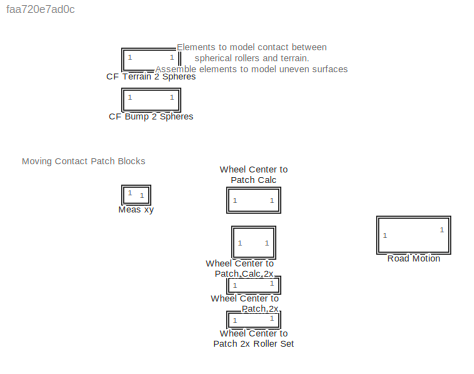
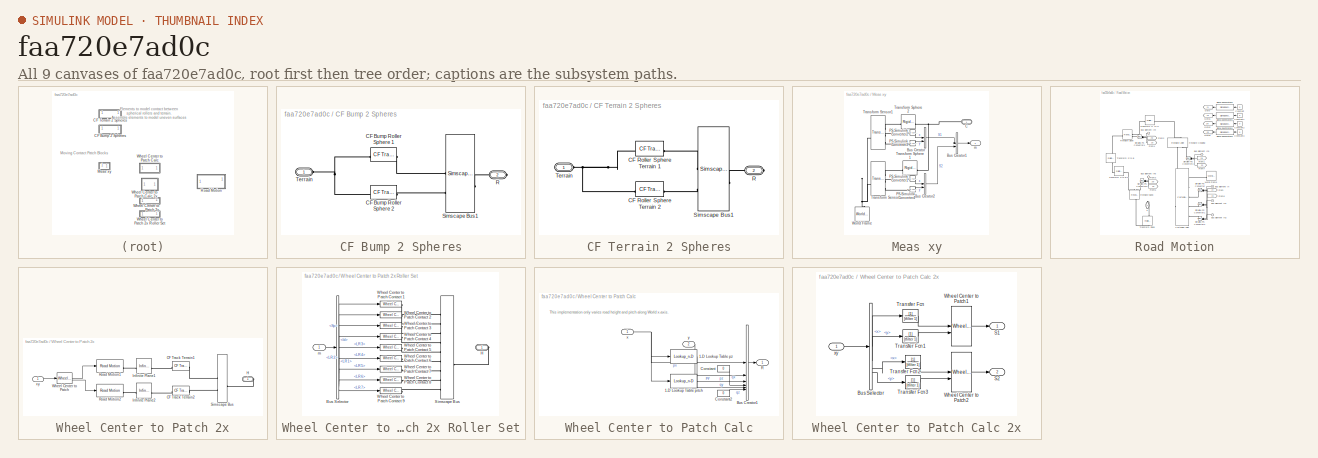
[diagram: thumbnail index - all 9 canvases of the model, root first then tree order]
MODEL slx_faa720e7ad0c
KIND library
CONFIG SolverName = VariableStepAuto
BLOCK [SubSystem] CF Bump 2 Spheres
BLOCK [Reference] CF Bump 2 Spheres/CF Bump Roller Sphere 1   REF=sm_trackV_lib_terrain_contact_elem/CF Track Terrain
  SourceBlock = sm_trackV_lib_terrain_contact_elem/CF Track Terrain
  SourceType = Contact Force, Track Segment to Terrain
BLOCK [Reference] CF Bump 2 Spheres/CF Bump Roller Sphere 2  REF=sm_trackV_lib_terrain_contact_elem/CF Track Terrain
  SourceBlock = sm_trackV_lib_terrain_contact_elem/CF Track Terrain
  SourceType = Contact Force, Track Segment to Terrain
BLOCK [PMIOPort] CF Bump 2 Spheres/R
  Port = 2
  Side = Right
BLOCK [SimscapeBus] CF Bump 2 Spheres/Simscape Bus1
  HierarchyStrings = S1;S2
BLOCK [PMIOPort] CF Bump 2 Spheres/Terrain
  Side = Left
BLOCK [SubSystem] CF Terrain 2 Spheres
BLOCK [Reference] CF Terrain 2 Spheres/CF Roller Sphere Terrain 1  REF=sm_trackV_lib_terrain_contact_elem/CF Track Terrain
  NameLocation = top
  SourceBlock = sm_trackV_lib_terrain_contact_elem/CF Track Terrain
  SourceType = Contact Force, Track Segment to Terrain
BLOCK [Reference] CF Terrain 2 Spheres/CF Roller Sphere Terrain 2  REF=sm_trackV_lib_terrain_contact_elem/CF Track Terrain
  SourceBlock = sm_trackV_lib_terrain_contact_elem/CF Track Terrain
  SourceType = Contact Force, Track Segment to Terrain
BLOCK [PMIOPort] CF Terrain 2 Spheres/R
  Port = 2
  Side = Right
BLOCK [SimscapeBus] CF Terrain 2 Spheres/Simscape Bus1
  HierarchyStrings = S1;S2
BLOCK [PMIOPort] CF Terrain 2 Spheres/Terrain
  Side = Left
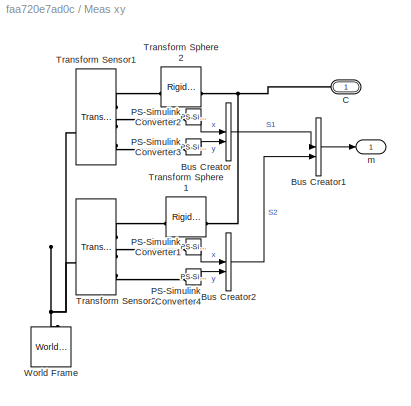
BLOCK [SubSystem] Meas xy
BLOCK [BusCreator] Meas xy/Bus Creator
  DisplayOption = bar
  InheritFromInputs = on
  Inputs = 2
BLOCK [BusCreator] Meas xy/Bus Creator1
  DisplayOption = bar
  InheritFromInputs = on
  Inputs = 2
BLOCK [BusCreator] Meas xy/Bus Creator2
  DisplayOption = bar
  InheritFromInputs = on
  Inputs = 2
BLOCK [PMIOPort] Meas xy/C
  Side = Left
BLOCK [Reference] Meas xy/PS-Simulink Converter1  REF=nesl_utility/PS-Simulink
Converter
  SourceBlock = nesl_utility/PS-Simulink\nConverter
  SourceType = PS-Simulink\nConverter
BLOCK [Reference] Meas xy/PS-Simulink Converter2  REF=nesl_utility/PS-Simulink
Converter
  SourceBlock = nesl_utility/PS-Simulink\nConverter
  SourceType = PS-Simulink\nConverter
BLOCK [Reference] Meas xy/PS-Simulink Converter3  REF=nesl_utility/PS-Simulink
Converter
  SourceBlock = nesl_utility/PS-Simulink\nConverter
  SourceType = PS-Simulink\nConverter
BLOCK [Reference] Meas xy/PS-Simulink Converter4  REF=nesl_utility/PS-Simulink
Converter
  SourceBlock = nesl_utility/PS-Simulink\nConverter
  SourceType = PS-Simulink\nConverter
BLOCK [Reference] Meas xy/Transform Sensor1  REF=sm_lib/Frames and
Transforms/Transform
Sensor
  SourceBlock = sm_lib/Frames and\nTransforms/Transform\nSensor
  SourceType = Transform\nSensor
BLOCK [Reference] Meas xy/Transform Sensor2  REF=sm_lib/Frames and
Transforms/Transform
Sensor
  SourceBlock = sm_lib/Frames and\nTransforms/Transform\nSensor
  SourceType = Transform\nSensor
BLOCK [Reference] Meas xy/Transform Sphere 1  REF=sm_lib/Frames and
Transforms/Rigid
Transform
  NameLocation = top
  SourceBlock = sm_lib/Frames and\nTransforms/Rigid\nTransform
  SourceType = Rigid\nTransform
BLOCK [Reference] Meas xy/Transform Sphere 2  REF=sm_lib/Frames and
Transforms/Rigid
Transform
  NameLocation = top
  SourceBlock = sm_lib/Frames and\nTransforms/Rigid\nTransform
  SourceType = Rigid\nTransform
BLOCK [Reference] Meas xy/World Frame  REF=sm_lib/Frames and
Transforms/World Frame
  NameLocation = left
  SourceBlock = sm_lib/Frames and\nTransforms/World Frame
  SourceType = World Frame
BLOCK [Outport] Meas xy/m
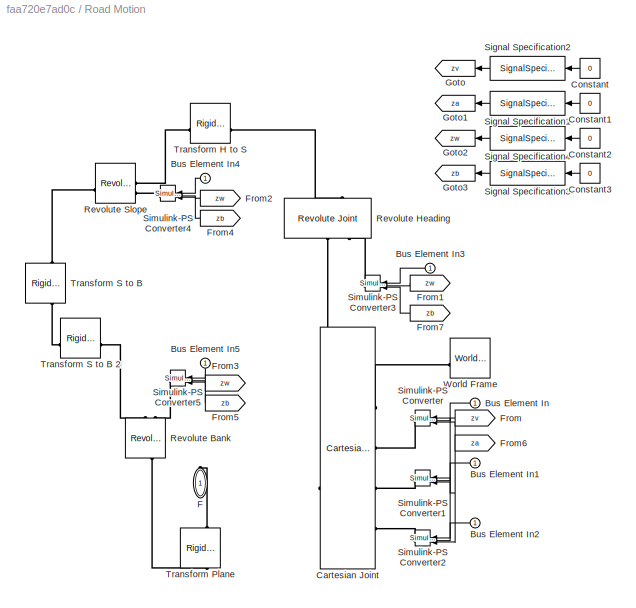
BLOCK [SubSystem] Road Motion
BLOCK [Inport] Road Motion/Bus Element In
BLOCK [Inport] Road Motion/Bus Element In1
BLOCK [Inport] Road Motion/Bus Element In2
BLOCK [Inport] Road Motion/Bus Element In3
BLOCK [Inport] Road Motion/Bus Element In4
BLOCK [Inport] Road Motion/Bus Element In5
BLOCK [Reference] Road Motion/Cartesian Joint  REF=sm_lib/Joints/Cartesian
Joint
  SourceBlock = sm_lib/Joints/Cartesian\nJoint
  SourceType = Cartesian\nJoint
BLOCK [Constant] Road Motion/Constant
  Value = 0
BLOCK [Constant] Road Motion/Constant1
  Value = 0
BLOCK [Constant] Road Motion/Constant2
  Value = 0
BLOCK [Constant] Road Motion/Constant3
  Value = 0
BLOCK [PMIOPort] Road Motion/F
  NameLocation = right
  Side = Right
BLOCK [From] Road Motion/From
  GotoTag = zv
BLOCK [From] Road Motion/From1
  GotoTag = zw
BLOCK [From] Road Motion/From2
  GotoTag = zw
BLOCK [From] Road Motion/From3
  GotoTag = zw
BLOCK [From] Road Motion/From4
  GotoTag = zb
BLOCK [From] Road Motion/From5
  GotoTag = zb
BLOCK [From] Road Motion/From6
  GotoTag = za
BLOCK [From] Road Motion/From7
  GotoTag = zb
BLOCK [Goto] Road Motion/Goto
  GotoTag = zv
  NameLocation = top
BLOCK [Goto] Road Motion/Goto1
  GotoTag = za
  NameLocation = top
BLOCK [Goto] Road Motion/Goto2
  GotoTag = zw
  NameLocation = top
BLOCK [Goto] Road Motion/Goto3
  GotoTag = zb
  NameLocation = top
BLOCK [Reference] Road Motion/Revolute Bank  REF=sm_lib/Joints/Revolute Joint
  NameLocation = left
  SourceBlock = sm_lib/Joints/Revolute Joint
  SourceType = Revolute Joint
BLOCK [Reference] Road Motion/Revolute Heading  REF=sm_lib/Joints/Revolute Joint
  NameLocation = right
  SourceBlock = sm_lib/Joints/Revolute Joint
  SourceType = Revolute Joint
BLOCK [Reference] Road Motion/Revolute Slope  REF=sm_lib/Joints/Revolute Joint
  SourceBlock = sm_lib/Joints/Revolute Joint
  SourceType = Revolute Joint
BLOCK [SignalSpecification] Road Motion/Signal Specification1
  Unit = m/s^2
BLOCK [SignalSpecification] Road Motion/Signal Specification2
  Unit = m/s
BLOCK [SignalSpecification] Road Motion/Signal Specification3
  Unit = rad/s^2
BLOCK [SignalSpecification] Road Motion/Signal Specification4
  Unit = rad/s
BLOCK [Reference] Road Motion/Simulink-PS Converter  REF=nesl_utility/Simulink-PS
Converter
  SourceBlock = nesl_utility/Simulink-PS\nConverter
  SourceType = Simulink-PS\nConverter
BLOCK [Reference] Road Motion/Simulink-PS Converter1  REF=nesl_utility/Simulink-PS
Converter
  SourceBlock = nesl_utility/Simulink-PS\nConverter
  SourceType = Simulink-PS\nConverter
BLOCK [Reference] Road Motion/Simulink-PS Converter2  REF=nesl_utility/Simulink-PS
Converter
  SourceBlock = nesl_utility/Simulink-PS\nConverter
  SourceType = Simulink-PS\nConverter
BLOCK [Reference] Road Motion/Simulink-PS Converter3  REF=nesl_utility/Simulink-PS
Converter
  NameLocation = top
  SourceBlock = nesl_utility/Simulink-PS\nConverter
  SourceType = Simulink-PS\nConverter
BLOCK [Reference] Road Motion/Simulink-PS Converter4  REF=nesl_utility/Simulink-PS
Converter
  SourceBlock = nesl_utility/Simulink-PS\nConverter
  SourceType = Simulink-PS\nConverter
BLOCK [Reference] Road Motion/Simulink-PS Converter5  REF=nesl_utility/Simulink-PS
Converter
  SourceBlock = nesl_utility/Simulink-PS\nConverter
  SourceType = Simulink-PS\nConverter
BLOCK [Reference] Road Motion/Transform H to S  REF=sm_lib/Frames and
Transforms/Rigid
Transform
  NameLocation = top
  SourceBlock = sm_lib/Frames and\nTransforms/Rigid\nTransform
  SourceType = Rigid\nTransform
BLOCK [Reference] Road Motion/Transform Plane  REF=sm_lib/Frames and
Transforms/Rigid
Transform
  NameLocation = right
  SourceBlock = sm_lib/Frames and\nTransforms/Rigid\nTransform
  SourceType = Rigid\nTransform
BLOCK [Reference] Road Motion/Transform S to B  REF=sm_lib/Frames and
Transforms/Rigid
Transform
  NameLocation = right
  SourceBlock = sm_lib/Frames and\nTransforms/Rigid\nTransform
  SourceType = Rigid\nTransform
BLOCK [Reference] Road Motion/Transform S to B 2  REF=sm_lib/Frames and
Transforms/Rigid
Transform
  SourceBlock = sm_lib/Frames and\nTransforms/Rigid\nTransform
  SourceType = Rigid\nTransform
BLOCK [Reference] Road Motion/World Frame  REF=sm_lib/Frames and
Transforms/World Frame
  NameLocation = top
  SourceBlock = sm_lib/Frames and\nTransforms/World Frame
  SourceType = World Frame
BLOCK [SubSystem] Wheel Center to Patch 2x
BLOCK [SubSystem] Wheel Center to Patch 2x Roller Set
BLOCK [BusSelector] Wheel Center to Patch 2x Roller Set/Bus Selector
  OutputSignals = Underc.Sp,Underc.Id,Underc.LR1,Underc.LR2,Underc.LR3,Underc.LR4,Underc.LR5,Underc.LR6,Underc.LR7
BLOCK [PMIOPort] Wheel Center to Patch 2x Roller Set/H
  Side = Right
BLOCK [SimscapeBus] Wheel Center to Patch 2x Roller Set/Simscape Bus
  HierarchyStrings = L1;L2;L3;L4;L5;L6;L7;L8;L9
BLOCK [Reference] Wheel Center to Patch 2x Roller Set/Wheel Center to Patch Contact 1  REF=$bdroot/Wheel Center to Patch 2x
  LibrarySourceBlock = sm_excv_uneven_road_lib/Rough Road 1 Roller1
  NameLocation = top
  SourceBlock = $bdroot/Wheel Center to Patch 2x
  SourceType = Wheel Center to Patch Height and Pitch, Infinite Planes
BLOCK [Reference] Wheel Center to Patch 2x Roller Set/Wheel Center to Patch Contact 2  REF=$bdroot/Wheel Center to Patch 2x
  LibrarySourceBlock = sm_excv_uneven_road_lib/Rough Road 1 Roller1
  NameLocation = top
  SourceBlock = $bdroot/Wheel Center to Patch 2x
  SourceType = Wheel Center to Patch Height and Pitch, Infinite Planes
BLOCK [Reference] Wheel Center to Patch 2x Roller Set/Wheel Center to Patch Contact 3  REF=$bdroot/Wheel Center to Patch 2x
  LibrarySourceBlock = sm_excv_uneven_road_lib/Rough Road 1 Roller1
  NameLocation = top
  SourceBlock = $bdroot/Wheel Center to Patch 2x
  SourceType = Wheel Center to Patch Height and Pitch, Infinite Planes
BLOCK [Reference] Wheel Center to Patch 2x Roller Set/Wheel Center to Patch Contact 4  REF=$bdroot/Wheel Center to Patch 2x
  LibrarySourceBlock = sm_excv_uneven_road_lib/Rough Road 1 Roller1
  NameLocation = top
  SourceBlock = $bdroot/Wheel Center to Patch 2x
  SourceType = Wheel Center to Patch Height and Pitch, Infinite Planes
BLOCK [Reference] Wheel Center to Patch 2x Roller Set/Wheel Center to Patch Contact 5  REF=$bdroot/Wheel Center to Patch 2x
  LibrarySourceBlock = sm_excv_uneven_road_lib/Rough Road 1 Roller1
  NameLocation = top
  SourceBlock = $bdroot/Wheel Center to Patch 2x
  SourceType = Wheel Center to Patch Height and Pitch, Infinite Planes
BLOCK [Reference] Wheel Center to Patch 2x Roller Set/Wheel Center to Patch Contact 6  REF=$bdroot/Wheel Center to Patch 2x
  LibrarySourceBlock = sm_excv_uneven_road_lib/Rough Road 1 Roller1
  NameLocation = top
  SourceBlock = $bdroot/Wheel Center to Patch 2x
  SourceType = Wheel Center to Patch Height and Pitch, Infinite Planes
BLOCK [Reference] Wheel Center to Patch 2x Roller Set/Wheel Center to Patch Contact 7  REF=$bdroot/Wheel Center to Patch 2x
  LibrarySourceBlock = sm_excv_uneven_road_lib/Rough Road 1 Roller1
  NameLocation = top
  SourceBlock = $bdroot/Wheel Center to Patch 2x
  SourceType = Wheel Center to Patch Height and Pitch, Infinite Planes
BLOCK [Reference] Wheel Center to Patch 2x Roller Set/Wheel Center to Patch Contact 8  REF=$bdroot/Wheel Center to Patch 2x
  LibrarySourceBlock = sm_excv_uneven_road_lib/Rough Road 1 Roller1
  NameLocation = top
  SourceBlock = $bdroot/Wheel Center to Patch 2x
  SourceType = Wheel Center to Patch Height and Pitch, Infinite Planes
BLOCK [Reference] Wheel Center to Patch 2x Roller Set/Wheel Center to Patch Contact 9  REF=$bdroot/Wheel Center to Patch 2x
  LibrarySourceBlock = sm_excv_uneven_road_lib/Rough Road 1 Roller1
  NameLocation = top
  SourceBlock = $bdroot/Wheel Center to Patch 2x
  SourceType = Wheel Center to Patch Height and Pitch, Infinite Planes
BLOCK [Inport] Wheel Center to Patch 2x Roller Set/m
BLOCK [Reference] Wheel Center to Patch 2x/CF Track Terrain1  REF=sm_trackV_lib_terrain_contact_elem/CF Track Terrain
  SourceBlock = sm_trackV_lib_terrain_contact_elem/CF Track Terrain
  SourceType = Contact Force, Track Segment to Terrain
BLOCK [Reference] Wheel Center to Patch 2x/CF Track Terrain2  REF=sm_trackV_lib_terrain_contact_elem/CF Track Terrain
  SourceBlock = sm_trackV_lib_terrain_contact_elem/CF Track Terrain
  SourceType = Contact Force, Track Segment to Terrain
BLOCK [PMIOPort] Wheel Center to Patch 2x/H
  Side = Right
BLOCK [Reference] Wheel Center to Patch 2x/Infinite Plane1  REF=sm_lib/Curves and Surfaces/Infinite Plane
  SourceBlock = sm_lib/Curves and Surfaces/Infinite Plane
  SourceType = Infinite Plane
BLOCK [Reference] Wheel Center to Patch 2x/Infinite Plane2  REF=sm_lib/Curves and Surfaces/Infinite Plane
  SourceBlock = sm_lib/Curves and Surfaces/Infinite Plane
  SourceType = Infinite Plane
BLOCK [Reference] Wheel Center to Patch 2x/Road Motion1  REF=$bdroot/Road Motion
  SourceBlock = $bdroot/Road Motion
  SourceType = Position Infinite Plane
BLOCK [Reference] Wheel Center to Patch 2x/Road Motion2  REF=$bdroot/Road Motion
  SourceBlock = $bdroot/Road Motion
  SourceType = Position Infinite Plane
BLOCK [SimscapeBus] Wheel Center to Patch 2x/Simscape Bus
  HierarchyStrings = S1;S2
BLOCK [Reference] Wheel Center to Patch 2x/Wheel Center to Patch  REF=$bdroot/Wheel Center to Patch Calc 2x
  LibrarySourceBlock = sm_excv_uneven_road_lib/Patch Position\nRough Road1
  SourceBlock = $bdroot/Wheel Center to Patch Calc 2x
  SourceType = Wheel Center to Patch Height and Pitch, Two Frames
BLOCK [Inport] Wheel Center to Patch 2x/xy
BLOCK [SubSystem] Wheel Center to Patch Calc
BLOCK [SubSystem] Wheel Center to Patch Calc 2x
BLOCK [BusSelector] Wheel Center to Patch Calc 2x/Bus Selector
  OutputSignals = S1.x,S1.y,S2.x,S2.y
BLOCK [Outport] Wheel Center to Patch Calc 2x/S1
BLOCK [Outport] Wheel Center to Patch Calc 2x/S2
  Port = 2
BLOCK [TransferFcn] Wheel Center to Patch Calc 2x/Transfer Fcn
  Denominator = [tfilter 1]
BLOCK [TransferFcn] Wheel Center to Patch Calc 2x/Transfer Fcn1
  Denominator = [tfilter 1]
BLOCK [TransferFcn] Wheel Center to Patch Calc 2x/Transfer Fcn2
  Denominator = [tfilter 1]
BLOCK [TransferFcn] Wheel Center to Patch Calc 2x/Transfer Fcn3
  Denominator = [tfilter 1]
BLOCK [Reference] Wheel Center to Patch Calc 2x/Wheel Center to Patch1  REF=$bdroot/Wheel Center to Patch Calc
  LibrarySourceBlock = sm_excv_uneven_road_lib/Rough Road Calc1
  NameLocation = top
  SourceBlock = $bdroot/Wheel Center to Patch Calc
  SourceType = Wheel Center to Patch Height and Pitch
BLOCK [Reference] Wheel Center to Patch Calc 2x/Wheel Center to Patch2  REF=$bdroot/Wheel Center to Patch Calc
  LibrarySourceBlock = sm_excv_uneven_road_lib/Rough Road Calc1
  SourceBlock = $bdroot/Wheel Center to Patch Calc
  SourceType = Wheel Center to Patch Height and Pitch
BLOCK [Inport] Wheel Center to Patch Calc 2x/xy
BLOCK [Lookup_n-D] Wheel Center to Patch Calc/1-D Lookup Table pitch
  BreakpointsForDimension1 = road_qy_x
  InputPortMap = u0
  InternalRulePriority = Speed
  InterpMethod = Akima spline
  NumberOfTableDimensions = 1
  RndMeth = Simplest
  Table = road_qy_qy
BLOCK [Lookup_n-D] Wheel Center to Patch Calc/1-D Lookup Table pz
  BreakpointsForDimension1 = road_pz_x
  InputPortMap = u0
  InternalRulePriority = Speed
  InterpMethod = Akima spline
  NumberOfTableDimensions = 1
  RndMeth = Simplest
  Table = road_pz_z
BLOCK [BusCreator] Wheel Center to Patch Calc/Bus Creator1
  DisplayOption = bar
  InheritFromInputs = on
  Inputs = 6
BLOCK [Constant] Wheel Center to Patch Calc/Constant
  Value = 0
BLOCK [Constant] Wheel Center to Patch Calc/Constant2
  Value = 0
BLOCK [Outport] Wheel Center to Patch Calc/R
BLOCK [Inport] Wheel Center to Patch Calc/x
BLOCK [Inport] Wheel Center to Patch Calc/y
  Port = 2
ANNOTATION (root): Elements to model contact between spherical rollers and terrain. Assemble elements to model uneven surfaces
ANNOTATION (root): Moving Contact Patch Blocks
ANNOTATION Wheel Center to Patch Calc: This implementation only varies road height and pitch along World x-axis.
LINE Meas xy/Bus Creator1:1 -> Meas xy/m:1
LINE Meas xy/Bus Creator2:1 -> Meas xy/Bus Creator1:2
LINE Meas xy/Bus Creator:1 -> Meas xy/Bus Creator1:1
LINE Meas xy/PS-Simulink Converter1:1 -> Meas xy/Bus Creator2:1
LINE Meas xy/PS-Simulink Converter2:1 -> Meas xy/Bus Creator:1
LINE Meas xy/PS-Simulink Converter3:1 -> Meas xy/Bus Creator:2
LINE Meas xy/PS-Simulink Converter4:1 -> Meas xy/Bus Creator2:2
LINE Road Motion/Bus Element In1:1 -> Road Motion/Simulink-PS Converter1:1
LINE Road Motion/Bus Element In2:1 -> Road Motion/Simulink-PS Converter2:1
LINE Road Motion/Bus Element In3:1 -> Road Motion/Simulink-PS Converter3:1
LINE Road Motion/Bus Element In4:1 -> Road Motion/Simulink-PS Converter4:1
LINE Road Motion/Bus Element In5:1 -> Road Motion/Simulink-PS Converter5:1
LINE Road Motion/Bus Element In:1 -> Road Motion/Simulink-PS Converter:1
LINE Road Motion/Constant1:1 -> Road Motion/Signal Specification1:1
LINE Road Motion/Constant2:1 -> Road Motion/Signal Specification4:1
LINE Road Motion/Constant3:1 -> Road Motion/Signal Specification3:1
LINE Road Motion/Constant:1 -> Road Motion/Signal Specification2:1
LINE Road Motion/From1:1 -> Road Motion/Simulink-PS Converter3:2
LINE Road Motion/From2:1 -> Road Motion/Simulink-PS Converter4:2
LINE Road Motion/From3:1 -> Road Motion/Simulink-PS Converter5:2
LINE Road Motion/From4:1 -> Road Motion/Simulink-PS Converter4:3
LINE Road Motion/From5:1 -> Road Motion/Simulink-PS Converter5:3
NET Road Motion/From6:1 -> Road Motion/Simulink-PS Converter1:3, Road Motion/Simulink-PS Converter2:3, Road Motion/Simulink-PS Converter:3
LINE Road Motion/From7:1 -> Road Motion/Simulink-PS Converter3:3
NET Road Motion/From:1 -> Road Motion/Simulink-PS Converter1:2, Road Motion/Simulink-PS Converter2:2, Road Motion/Simulink-PS Converter:2
LINE Road Motion/Signal Specification1:1 -> Road Motion/Goto1:1
LINE Road Motion/Signal Specification2:1 -> Road Motion/Goto:1
LINE Road Motion/Signal Specification3:1 -> Road Motion/Goto3:1
LINE Road Motion/Signal Specification4:1 -> Road Motion/Goto2:1
LINE Wheel Center to Patch 2x Roller Set/Bus Selector:1 -> Wheel Center to Patch 2x Roller Set/Wheel Center to Patch Contact 1:1
LINE Wheel Center to Patch 2x Roller Set/Bus Selector:2 -> Wheel Center to Patch 2x Roller Set/Wheel Center to Patch Contact 2:1
LINE Wheel Center to Patch 2x Roller Set/Bus Selector:3 -> Wheel Center to Patch 2x Roller Set/Wheel Center to Patch Contact 3:1
LINE Wheel Center to Patch 2x Roller Set/Bus Selector:4 -> Wheel Center to Patch 2x Roller Set/Wheel Center to Patch Contact 4:1
LINE Wheel Center to Patch 2x Roller Set/Bus Selector:5 -> Wheel Center to Patch 2x Roller Set/Wheel Center to Patch Contact 5:1
LINE Wheel Center to Patch 2x Roller Set/Bus Selector:6 -> Wheel Center to Patch 2x Roller Set/Wheel Center to Patch Contact 6:1
LINE Wheel Center to Patch 2x Roller Set/Bus Selector:7 -> Wheel Center to Patch 2x Roller Set/Wheel Center to Patch Contact 7:1
LINE Wheel Center to Patch 2x Roller Set/Bus Selector:8 -> Wheel Center to Patch 2x Roller Set/Wheel Center to Patch Contact 8:1
LINE Wheel Center to Patch 2x Roller Set/Bus Selector:9 -> Wheel Center to Patch 2x Roller Set/Wheel Center to Patch Contact 9:1
LINE Wheel Center to Patch 2x Roller Set/m:1 -> Wheel Center to Patch 2x Roller Set/Bus Selector:1
LINE Wheel Center to Patch 2x/Wheel Center to Patch:1 -> Wheel Center to Patch 2x/Road Motion1:1
LINE Wheel Center to Patch 2x/Wheel Center to Patch:2 -> Wheel Center to Patch 2x/Road Motion2:1
LINE Wheel Center to Patch 2x/xy:1 -> Wheel Center to Patch 2x/Wheel Center to Patch:1
LINE Wheel Center to Patch Calc 2x/Bus Selector:1 -> Wheel Center to Patch Calc 2x/Transfer Fcn:1
LINE Wheel Center to Patch Calc 2x/Bus Selector:2 -> Wheel Center to Patch Calc 2x/Transfer Fcn1:1
LINE Wheel Center to Patch Calc 2x/Bus Selector:3 -> Wheel Center to Patch Calc 2x/Transfer Fcn2:1
LINE Wheel Center to Patch Calc 2x/Bus Selector:4 -> Wheel Center to Patch Calc 2x/Transfer Fcn3:1
LINE Wheel Center to Patch Calc 2x/Transfer Fcn1:1 -> Wheel Center to Patch Calc 2x/Wheel Center to Patch1:2
LINE Wheel Center to Patch Calc 2x/Transfer Fcn2:1 -> Wheel Center to Patch Calc 2x/Wheel Center to Patch2:1
LINE Wheel Center to Patch Calc 2x/Transfer Fcn3:1 -> Wheel Center to Patch Calc 2x/Wheel Center to Patch2:2
LINE Wheel Center to Patch Calc 2x/Transfer Fcn:1 -> Wheel Center to Patch Calc 2x/Wheel Center to Patch1:1
LINE Wheel Center to Patch Calc 2x/Wheel Center to Patch1:1 -> Wheel Center to Patch Calc 2x/S1:1
LINE Wheel Center to Patch Calc 2x/Wheel Center to Patch2:1 -> Wheel Center to Patch Calc 2x/S2:1
LINE Wheel Center to Patch Calc 2x/xy:1 -> Wheel Center to Patch Calc 2x/Bus Selector:1
LINE Wheel Center to Patch Calc/1-D Lookup Table pitch:1 -> Wheel Center to Patch Calc/Bus Creator1:5
LINE Wheel Center to Patch Calc/1-D Lookup Table pz:1 -> Wheel Center to Patch Calc/Bus Creator1:3
LINE Wheel Center to Patch Calc/Bus Creator1:1 -> Wheel Center to Patch Calc/R:1
LINE Wheel Center to Patch Calc/Constant2:1 -> Wheel Center to Patch Calc/Bus Creator1:6
LINE Wheel Center to Patch Calc/Constant:1 -> Wheel Center to Patch Calc/Bus Creator1:4
NET Wheel Center to Patch Calc/x:1 -> Wheel Center to Patch Calc/1-D Lookup Table pitch:1, Wheel Center to Patch Calc/1-D Lookup Table pz:1, Wheel Center to Patch Calc/Bus Creator1:1
LINE Wheel Center to Patch Calc/y:1 -> Wheel Center to Patch Calc/Bus Creator1:2
PNET net1: CF Bump 2 Spheres/CF Bump Roller Sphere 1 :LConn1 -- CF Bump 2 Spheres/CF Bump Roller Sphere 2:LConn1 -- CF Bump 2 Spheres/Terrain:RConn1
PLINE CF Bump 2 Spheres/CF Bump Roller Sphere 1 :RConn1 -- CF Bump 2 Spheres/Simscape Bus1:LConn1
PLINE CF Bump 2 Spheres/CF Bump Roller Sphere 2:RConn1 -- CF Bump 2 Spheres/Simscape Bus1:LConn2
PLINE CF Bump 2 Spheres/R:RConn1 -- CF Bump 2 Spheres/Simscape Bus1:RConn1
PNET net2: CF Terrain 2 Spheres/CF Roller Sphere Terrain 1:LConn1 -- CF Terrain 2 Spheres/CF Roller Sphere Terrain 2:LConn1 -- CF Terrain 2 Spheres/Terrain:RConn1
PLINE CF Terrain 2 Spheres/CF Roller Sphere Terrain 1:RConn1 -- CF Terrain 2 Spheres/Simscape Bus1:LConn1
PLINE CF Terrain 2 Spheres/CF Roller Sphere Terrain 2:RConn1 -- CF Terrain 2 Spheres/Simscape Bus1:LConn2
PLINE CF Terrain 2 Spheres/R:RConn1 -- CF Terrain 2 Spheres/Simscape Bus1:RConn1
PNET net3: Meas xy/C:RConn1 -- Meas xy/Transform Sphere 1:LConn1 -- Meas xy/Transform Sphere 2:LConn1
PLINE Meas xy/PS-Simulink Converter1:LConn1 -- Meas xy/Transform Sensor2:RConn2
PLINE Meas xy/PS-Simulink Converter2:LConn1 -- Meas xy/Transform Sensor1:RConn2
PLINE Meas xy/PS-Simulink Converter3:LConn1 -- Meas xy/Transform Sensor1:RConn3
PLINE Meas xy/PS-Simulink Converter4:LConn1 -- Meas xy/Transform Sensor2:RConn3
PNET net4: Meas xy/Transform Sensor1:LConn1 -- Meas xy/Transform Sensor2:LConn1 -- Meas xy/World Frame:RConn1
PLINE Meas xy/Transform Sensor1:RConn1 -- Meas xy/Transform Sphere 2:RConn1
PLINE Meas xy/Transform Sensor2:RConn1 -- Meas xy/Transform Sphere 1:RConn1
PLINE Road Motion/Cartesian Joint:LConn1 -- Road Motion/World Frame:RConn1
PLINE Road Motion/Cartesian Joint:LConn2 -- Road Motion/Simulink-PS Converter:RConn1
PLINE Road Motion/Cartesian Joint:LConn3 -- Road Motion/Simulink-PS Converter1:RConn1
PLINE Road Motion/Cartesian Joint:LConn4 -- Road Motion/Simulink-PS Converter2:RConn1
PLINE Road Motion/Cartesian Joint:RConn1 -- Road Motion/Revolute Heading:LConn1
PLINE Road Motion/F:RConn1 -- Road Motion/Transform Plane:RConn1
PLINE Road Motion/Revolute Bank:LConn1 -- Road Motion/Transform S to B 2:RConn1
PLINE Road Motion/Revolute Bank:LConn2 -- Road Motion/Simulink-PS Converter5:RConn1
PLINE Road Motion/Revolute Bank:RConn1 -- Road Motion/Transform Plane:LConn1
PLINE Road Motion/Revolute Heading:LConn2 -- Road Motion/Simulink-PS Converter3:RConn1
PLINE Road Motion/Revolute Heading:RConn1 -- Road Motion/Transform H to S:LConn1
PLINE Road Motion/Revolute Slope:LConn1 -- Road Motion/Transform H to S:RConn1
PLINE Road Motion/Revolute Slope:LConn2 -- Road Motion/Simulink-PS Converter4:RConn1
PLINE Road Motion/Revolute Slope:RConn1 -- Road Motion/Transform S to B:LConn1
PLINE Road Motion/Transform S to B 2:LConn1 -- Road Motion/Transform S to B:RConn1
PLINE Wheel Center to Patch 2x Roller Set/H:RConn1 -- Wheel Center to Patch 2x Roller Set/Simscape Bus:RConn1
PLINE Wheel Center to Patch 2x Roller Set/Simscape Bus:LConn1 -- Wheel Center to Patch 2x Roller Set/Wheel Center to Patch Contact 1:RConn1
PLINE Wheel Center to Patch 2x Roller Set/Simscape Bus:LConn2 -- Wheel Center to Patch 2x Roller Set/Wheel Center to Patch Contact 2:RConn1
PLINE Wheel Center to Patch 2x Roller Set/Simscape Bus:LConn3 -- Wheel Center to Patch 2x Roller Set/Wheel Center to Patch Contact 3:RConn1
PLINE Wheel Center to Patch 2x Roller Set/Simscape Bus:LConn4 -- Wheel Center to Patch 2x Roller Set/Wheel Center to Patch Contact 4:RConn1
PLINE Wheel Center to Patch 2x Roller Set/Simscape Bus:LConn5 -- Wheel Center to Patch 2x Roller Set/Wheel Center to Patch Contact 5:RConn1
PLINE Wheel Center to Patch 2x Roller Set/Simscape Bus:LConn6 -- Wheel Center to Patch 2x Roller Set/Wheel Center to Patch Contact 6:RConn1
PLINE Wheel Center to Patch 2x Roller Set/Simscape Bus:LConn7 -- Wheel Center to Patch 2x Roller Set/Wheel Center to Patch Contact 7:RConn1
PLINE Wheel Center to Patch 2x Roller Set/Simscape Bus:LConn8 -- Wheel Center to Patch 2x Roller Set/Wheel Center to Patch Contact 8:RConn1
PLINE Wheel Center to Patch 2x Roller Set/Simscape Bus:LConn9 -- Wheel Center to Patch 2x Roller Set/Wheel Center to Patch Contact 9:RConn1
PLINE Wheel Center to Patch 2x/CF Track Terrain1:LConn1 -- Wheel Center to Patch 2x/Infinite Plane1:RConn1
PLINE Wheel Center to Patch 2x/CF Track Terrain1:RConn1 -- Wheel Center to Patch 2x/Simscape Bus:LConn1
PLINE Wheel Center to Patch 2x/CF Track Terrain2:LConn1 -- Wheel Center to Patch 2x/Infinite Plane2:RConn1
PLINE Wheel Center to Patch 2x/CF Track Terrain2:RConn1 -- Wheel Center to Patch 2x/Simscape Bus:LConn2
PLINE Wheel Center to Patch 2x/H:RConn1 -- Wheel Center to Patch 2x/Simscape Bus:RConn1
PLINE Wheel Center to Patch 2x/Infinite Plane1:LConn1 -- Wheel Center to Patch 2x/Road Motion1:RConn1
PLINE Wheel Center to Patch 2x/Infinite Plane2:LConn1 -- Wheel Center to Patch 2x/Road Motion2:RConn1
note: NET lines group one-source signal fan-out (src -> all destinations, sorted); 1:1 wires keep LINE; PNET lines group multi-terminal physical nets as a canonical sorted terminal list (undirected conserving connections); 2-terminal nets keep the pairwise PLINE form
